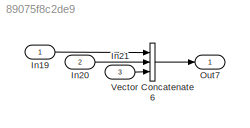
MODEL slx_89075f8c2de9
KIND model
CONFIG AbsTol = auto
CONFIG EnableMultiTasking = on
CONFIG FixedStep = 0.1
CONFIG MaxStep = 1
CONFIG MinStep = auto
CONFIG RelTol = 1e-3
CONFIG SampleTimeConstraint = Unconstrained
CONFIG Solver = FixedStepAuto
CONFIG SolverName = FixedStepAuto
CONFIG StartTime = 0.0
CONFIG StopTime = 0
BLOCK [Inport] In19
  IconDisplay = Port number
  OutDataTypeStr = double
  PortDimensions = 2
BLOCK [Inport] In20
  IconDisplay = Port number
  OutDataTypeStr = double
  Port = 2
  PortDimensions = 2
BLOCK [Inport] In21
  IconDisplay = Port number
  OutDataTypeStr = double
  Port = 3
  PortDimensions = 2
BLOCK [Outport] Out7
  IconDisplay = Port number
BLOCK [Concatenate] Vector Concatenate6
  ConcatenateDimension = 2
  Mode = Multidimensional array
  NumInputs = 3
  Ports = [3, 1]
LINE In19:1 -> Vector Concatenate6:1
LINE In20:1 -> Vector Concatenate6:2
LINE In21:1 -> Vector Concatenate6:3
LINE Vector Concatenate6:1 -> Out7:1
